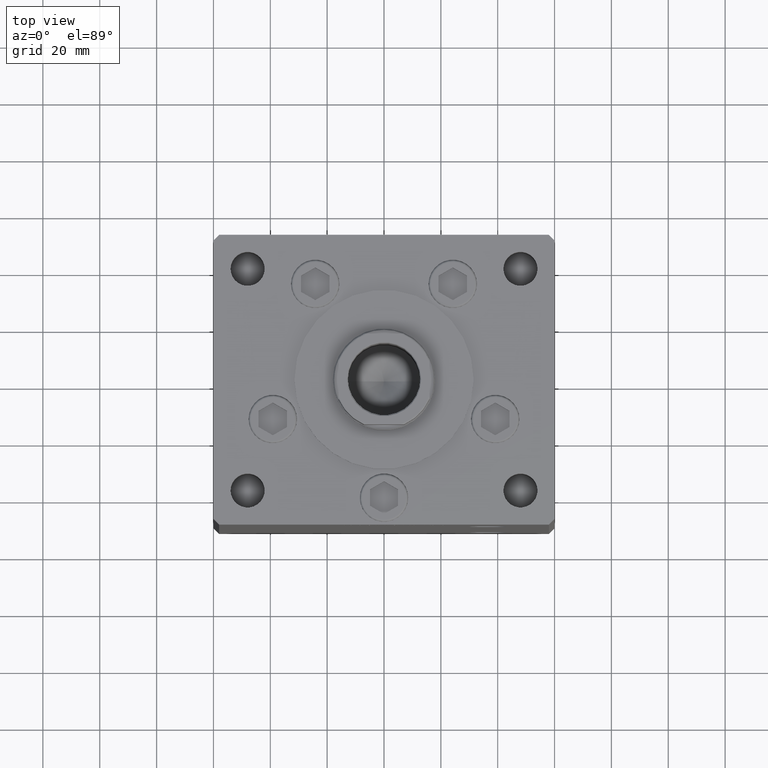
[diagram: clean part render]
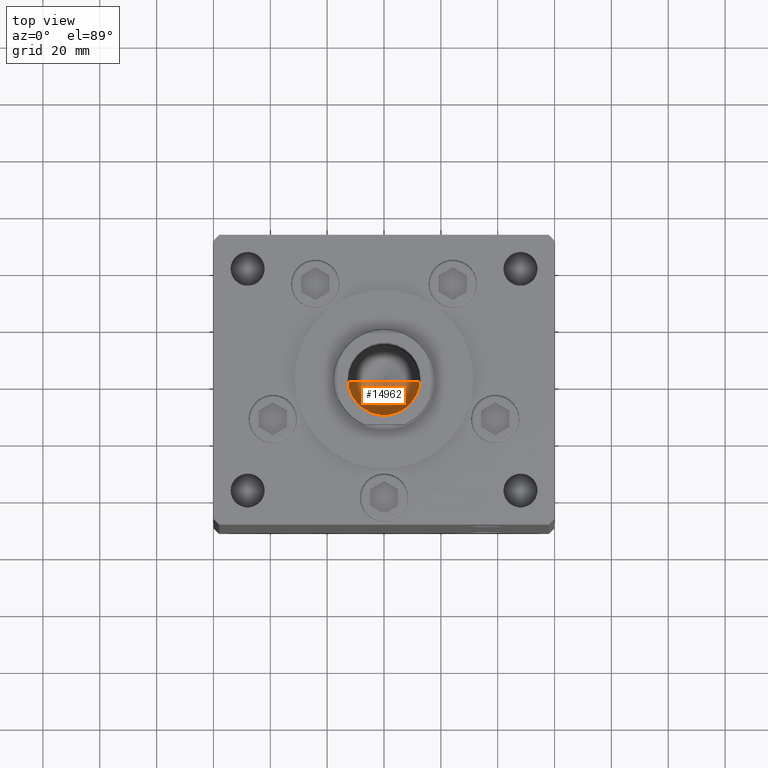
[diagram: same view with one face highlighted and labeled with its STEP entity id]
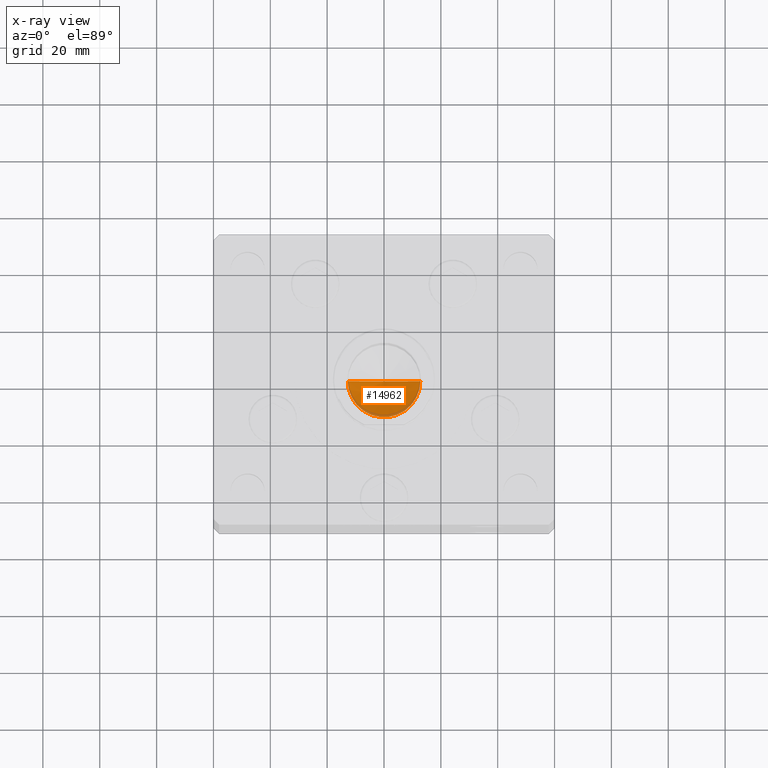
[diagram: x-ray of the same camera — body ghosted, the highlighted face saturated]
A machine part, top view. The second image highlights one B-rep face of the part: STEP entity #14962.
The next image is the same camera in x-ray: the body ghosted, the highlighted face saturated — about 8% of this face is hidden behind the body in this view.
In plain terms, the highlighted conical surface has half-angle 59 deg.
Its self-contained STEP definition (entity closure, byte-faithful):
#87 = FACE_OUTER_BOUND ( 'NONE', #15547, .T. ) ;
#1697 = DIRECTION ( 'NONE',  ( -0.8571673007021117785, 1.049727191138617956E-16, 0.5150380749100550437 ) ) ;
#2664 = VECTOR ( 'NONE', #51734, 1000.000000000000000 ) ;
#2871 = VERTEX_POINT ( 'NONE', #41092 ) ;
#3877 = CARTESIAN_POINT ( 'NONE',  ( -1.307202896762960287E-14, 0.000000000000000000, 116.5890271073986213 ) ) ;
#4298 = CARTESIAN_POINT ( 'NONE',  ( 0.000000000000000000, 0.000000000000000000, 124.2500000000000142 ) ) ;
#11669 = EDGE_CURVE ( 'NONE', #49444, #33088, #48902, .T. ) ;
#11980 = EDGE_CURVE ( 'NONE', #33088, #2871, #12896, .T. ) ;
#12795 = CARTESIAN_POINT ( 'NONE',  ( -12.74999999999999112, 1.561424668912874125E-15, 124.2500000000000142 ) ) ;
#12896 = CIRCLE ( 'NONE', #24654, 12.74999999999999112 ) ;
#14029 = DIRECTION ( 'NONE',  ( 1.000000000000000000, 0.000000000000000000, 0.000000000000000000 ) ) ;
#14962 = ADVANCED_FACE ( 'NONE', ( #87 ), #16318, .F. ) ;
#15547 = EDGE_LOOP ( 'NONE', ( #47573, #22606, #38258 ) ) ;
#16318 = CONICAL_SURFACE ( 'NONE', #17179, 12.74999999999999112, 1.029744258676653423 ) ;
#17179 = AXIS2_PLACEMENT_3D ( 'NONE', #4298, #20373, #36459 ) ;
#20373 = DIRECTION ( 'NONE',  ( -0.000000000000000000, -0.000000000000000000, 1.000000000000000000 ) ) ;
#22606 = ORIENTED_EDGE ( 'NONE', *, *, #11669, .T. ) ;
#24654 = AXIS2_PLACEMENT_3D ( 'NONE', #38024, #26136, #14029 ) ;
#26136 = DIRECTION ( 'NONE',  ( -0.000000000000000000, -0.000000000000000000, 1.000000000000000000 ) ) ;
#33088 = VERTEX_POINT ( 'NONE', #46807 ) ;
#35667 = LINE ( 'NONE', #48303, #2664 ) ;
#36459 = DIRECTION ( 'NONE',  ( 1.000000000000000000, 0.000000000000000000, 0.000000000000000000 ) ) ;
#38024 = CARTESIAN_POINT ( 'NONE',  ( 0.000000000000000000, 0.000000000000000000, 124.2500000000000142 ) ) ;
#38258 = ORIENTED_EDGE ( 'NONE', *, *, #11980, .T. ) ;
#39909 = VECTOR ( 'NONE', #1697, 1000.000000000000000 ) ;
#41092 = CARTESIAN_POINT ( 'NONE',  ( 12.74999999999999112, 0.000000000000000000, 124.2500000000000142 ) ) ;
#46807 = CARTESIAN_POINT ( 'NONE',  ( -12.74999999999999112, 1.561424668912874125E-15, 124.2500000000000142 ) ) ;
#47573 = ORIENTED_EDGE ( 'NONE', *, *, #51008, .F. ) ;
#48303 = CARTESIAN_POINT ( 'NONE',  ( 12.74999999999999112, 0.000000000000000000, 124.2500000000000142 ) ) ;
#48902 = LINE ( 'NONE', #12795, #39909 ) ;
#49444 = VERTEX_POINT ( 'NONE', #3877 ) ;
#51008 = EDGE_CURVE ( 'NONE', #49444, #2871, #35667, .T. ) ;
#51734 = DIRECTION ( 'NONE',  ( 0.8571673007021117785, 0.000000000000000000, 0.5150380749100550437 ) ) ;